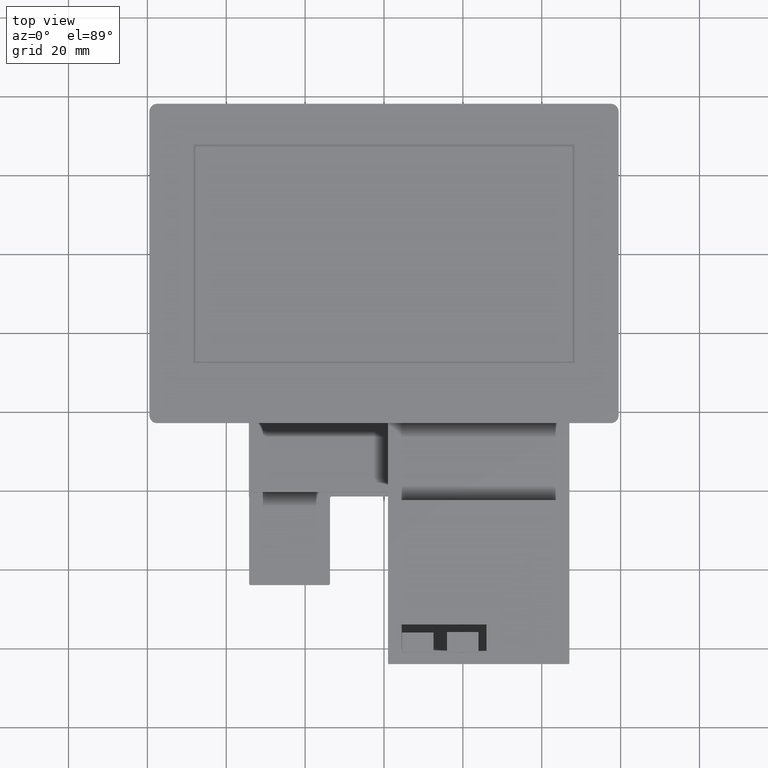
[diagram: clean part render]
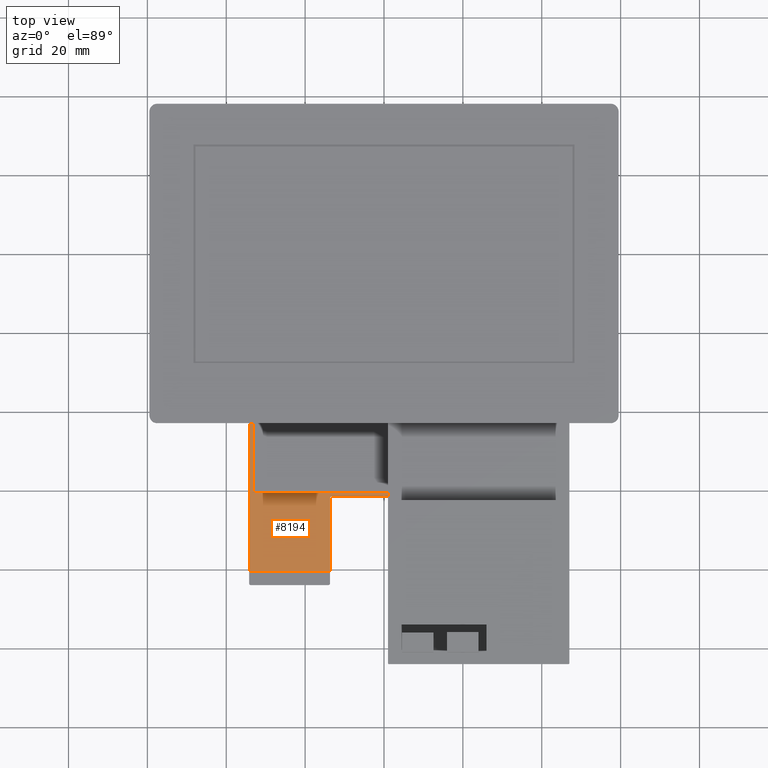
[diagram: same view with one face highlighted and labeled with its STEP entity id]
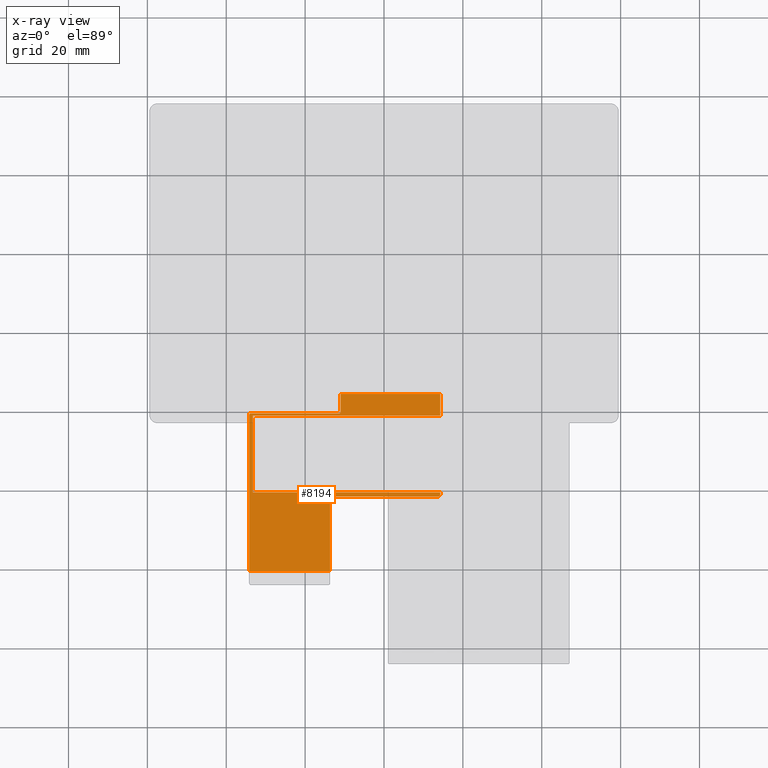
[diagram: x-ray of the same camera — body ghosted, the highlighted face saturated]
A machine part, top view. The second image highlights one B-rep face of the part: STEP entity #8194.
The next image is the same camera in x-ray: the body ghosted, the highlighted face saturated — about 0% of this face is hidden behind the body in this view.
In plain terms, the highlighted planar face has unit normal (0, 0, 1).
Its self-contained STEP definition (entity closure, byte-faithful):
#323=PLANE('',#8687);
#713=FACE_OUTER_BOUND('',#1149,.T.);
#1149=EDGE_LOOP('',(#7042,#7043,#7044,#7045,#7046,#7047,#7048,#7049,#7050,
#7051,#7052,#7053,#7054,#7055,#7056,#7057));
#1547=LINE('',#11481,#2625);
#1551=LINE('',#11489,#2629);
#1555=LINE('',#11497,#2633);
#2044=LINE('',#12482,#3122);
#2051=LINE('',#12500,#3129);
#2067=LINE('',#12542,#3145);
#2071=LINE('',#12549,#3149);
#2072=LINE('',#12551,#3150);
#2073=LINE('',#12555,#3151);
#2074=LINE('',#12558,#3152);
#2075=LINE('',#12561,#3153);
#2076=LINE('',#12562,#3154);
#2625=VECTOR('',#9357,10.5);
#2629=VECTOR('',#9361,0.67);
#2633=VECTOR('',#9367,47.5);
#3122=VECTOR('',#10184,10.);
#3129=VECTOR('',#10203,42.72);
#3145=VECTOR('',#10241,27.15);
#3149=VECTOR('',#10247,10.);
#3150=VECTOR('',#10248,9.597074687738);
#3151=VECTOR('',#10251,22.38707468774);
#3152=VECTOR('',#10254,21.65);
#3153=VECTOR('',#10257,47.5);
#3154=VECTOR('',#10258,19.5);
#3520=CIRCLE('',#8683,0.4);
#3522=CIRCLE('',#8688,0.402925312262);
#3523=CIRCLE('',#8689,0.4);
#3524=CIRCLE('',#8690,0.4);
#3733=VERTEX_POINT('',#11478);
#3734=VERTEX_POINT('',#11480);
#3737=VERTEX_POINT('',#11486);
#3738=VERTEX_POINT('',#11488);
#3741=VERTEX_POINT('',#11496);
#4072=VERTEX_POINT('',#12479);
#4073=VERTEX_POINT('',#12481);
#4078=VERTEX_POINT('',#12499);
#4089=VERTEX_POINT('',#12529);
#4093=VERTEX_POINT('',#12541);
#4095=VERTEX_POINT('',#12548);
#4096=VERTEX_POINT('',#12550);
#4097=VERTEX_POINT('',#12552);
#4098=VERTEX_POINT('',#12554);
#4099=VERTEX_POINT('',#12557);
#4100=VERTEX_POINT('',#12560);
#4586=EDGE_CURVE('',#3734,#3733,#1547,.T.);
#4590=EDGE_CURVE('',#3738,#3737,#1551,.T.);
#4594=EDGE_CURVE('',#3734,#3741,#1555,.T.);
#5086=EDGE_CURVE('',#4073,#4072,#2044,.T.);
#5095=EDGE_CURVE('',#4078,#4073,#2051,.T.);
#5110=EDGE_CURVE('',#3738,#4089,#3520,.T.);
#5116=EDGE_CURVE('',#4093,#4089,#2067,.T.);
#5120=EDGE_CURVE('',#4095,#3733,#2071,.T.);
#5121=EDGE_CURVE('',#4095,#4096,#2072,.T.);
#5122=EDGE_CURVE('',#4096,#4097,#3522,.T.);
#5123=EDGE_CURVE('',#4097,#4098,#2073,.T.);
#5124=EDGE_CURVE('',#4098,#4078,#3523,.T.);
#5125=EDGE_CURVE('',#4072,#4099,#2074,.T.);
#5126=EDGE_CURVE('',#4099,#4093,#3524,.T.);
#5127=EDGE_CURVE('',#3737,#4100,#2075,.T.);
#5128=EDGE_CURVE('',#3741,#4100,#2076,.T.);
#7042=ORIENTED_EDGE('',*,*,#5120,.F.);
#7043=ORIENTED_EDGE('',*,*,#5121,.T.);
#7044=ORIENTED_EDGE('',*,*,#5122,.T.);
#7045=ORIENTED_EDGE('',*,*,#5123,.T.);
#7046=ORIENTED_EDGE('',*,*,#5124,.T.);
#7047=ORIENTED_EDGE('',*,*,#5095,.T.);
#7048=ORIENTED_EDGE('',*,*,#5086,.T.);
#7049=ORIENTED_EDGE('',*,*,#5125,.T.);
#7050=ORIENTED_EDGE('',*,*,#5126,.T.);
#7051=ORIENTED_EDGE('',*,*,#5116,.T.);
#7052=ORIENTED_EDGE('',*,*,#5110,.F.);
#7053=ORIENTED_EDGE('',*,*,#4590,.T.);
#7054=ORIENTED_EDGE('',*,*,#5127,.T.);
#7055=ORIENTED_EDGE('',*,*,#5128,.F.);
#7056=ORIENTED_EDGE('',*,*,#4594,.F.);
#7057=ORIENTED_EDGE('',*,*,#4586,.T.);
#8194=ADVANCED_FACE('',(#713),#323,.T.);
#8683=AXIS2_PLACEMENT_3D('',#12530,#10229,#10230);
#8687=AXIS2_PLACEMENT_3D('',#12547,#10245,#10246);
#8688=AXIS2_PLACEMENT_3D('',#12553,#10249,#10250);
#8689=AXIS2_PLACEMENT_3D('',#12556,#10252,#10253);
#8690=AXIS2_PLACEMENT_3D('',#12559,#10255,#10256);
#9357=DIRECTION('',(-8.65815638633699E-16,1.,0.));
#9361=DIRECTION('',(-8.65815638633699E-16,1.,0.));
#9367=DIRECTION('',(-1.,-8.65815638633699E-16,0.));
#10184=DIRECTION('',(1.,8.65815638633699E-16,0.));
#10203=DIRECTION('',(8.65815638633699E-16,-1.,0.));
#10229=DIRECTION('center_axis',(0.,0.,-1.));
#10230=DIRECTION('ref_axis',(0.707106781186297,-0.707106781186798,0.));
#10241=DIRECTION('',(1.,8.65815638633699E-16,0.));
#10245=DIRECTION('center_axis',(0.,0.,1.));
#10246=DIRECTION('ref_axis',(1.,8.65815638633699E-16,0.));
#10247=DIRECTION('',(1.,8.65815638633699E-16,0.));
#10248=DIRECTION('',(8.65815638633699E-16,-1.,0.));
#10249=DIRECTION('center_axis',(0.,0.,-1.));
#10250=DIRECTION('ref_axis',(1.,8.65815638633699E-16,0.));
#10251=DIRECTION('',(-1.,-8.65815638633699E-16,0.));
#10252=DIRECTION('center_axis',(0.,0.,1.));
#10253=DIRECTION('ref_axis',(-8.65815638633699E-16,1.,0.));
#10254=DIRECTION('',(-8.65815638633699E-16,1.,0.));
#10255=DIRECTION('center_axis',(0.,0.,-1.));
#10256=DIRECTION('ref_axis',(-1.,-8.65815638633699E-16,0.));
#10257=DIRECTION('',(-1.,-8.65815638633699E-16,0.));
#10258=DIRECTION('',(8.65815638633699E-16,-1.,0.));
#11478=CARTESIAN_POINT('',(14.2499999999984,-35.4219999999991,-4.14));
#11480=CARTESIAN_POINT('',(14.2499999999984,-40.8519999997489,-4.14));
#11481=CARTESIAN_POINT('',(14.2499999999984,-40.8519999997489,-4.14));
#11486=CARTESIAN_POINT('',(14.2499999999984,-60.3519999997519,-4.14));
#11488=CARTESIAN_POINT('',(14.2499999999984,-61.0219999997518,-4.14));
#11489=CARTESIAN_POINT('',(14.2499999999984,-61.021999999752,-4.14));
#11496=CARTESIAN_POINT('',(-33.2400000000015,-40.8519999997489,-4.14));
#11497=CARTESIAN_POINT('',(14.2599999999985,-40.8519999997489,-4.14));
#12479=CARTESIAN_POINT('',(-13.6900000000014,-80.371999999749,-4.14));
#12481=CARTESIAN_POINT('',(-34.1900000000012,-80.371999999749,-4.14));
#12482=CARTESIAN_POINT('',(-22.5950000000012,-80.3719999997489,-4.14));
#12499=CARTESIAN_POINT('',(-34.1900000000015,-40.751999999749,-4.14));
#12500=CARTESIAN_POINT('',(-34.1900000000015,-40.751999999749,-4.14));
#12529=CARTESIAN_POINT('',(13.8499999999985,-61.4219999997519,-4.14));
#12530=CARTESIAN_POINT('Origin',(13.8499999999985,-61.0219999997518,-4.14));
#12541=CARTESIAN_POINT('',(-13.2900000000018,-61.4219999997519,-4.14));
#12542=CARTESIAN_POINT('',(-13.2900000000018,-61.4219999997519,-4.14));
#12547=CARTESIAN_POINT('Origin',(-11.0000000000016,-52.6707898479989,-4.14));
#12548=CARTESIAN_POINT('',(-11.0000000000016,-35.4219999999991,-4.14));
#12549=CARTESIAN_POINT('',(-31.6500000000016,-35.4219999999991,-4.14));
#12550=CARTESIAN_POINT('',(-11.0000000000016,-39.9490746874889,-4.14));
#12551=CARTESIAN_POINT('',(-11.0000000000016,-30.3519999997489,-4.14));
#12552=CARTESIAN_POINT('',(-11.4029253122638,-40.3519999997489,-4.14));
#12553=CARTESIAN_POINT('Origin',(-11.4029253122638,-39.9490746874889,-4.14));
#12554=CARTESIAN_POINT('',(-33.7900000000016,-40.3519999997489,-4.14));
#12555=CARTESIAN_POINT('',(-11.4029253122638,-40.3519999997489,-4.14));
#12556=CARTESIAN_POINT('Origin',(-33.7900000000016,-40.751999999749,-4.14));
#12557=CARTESIAN_POINT('',(-13.6900000000017,-61.821999999752,-4.14));
#12558=CARTESIAN_POINT('',(-13.6900000000014,-83.4719999997489,-4.14));
#12559=CARTESIAN_POINT('Origin',(-13.2900000000018,-61.821999999752,-4.14));
#12560=CARTESIAN_POINT('',(-33.2400000000015,-60.3519999997519,-4.14));
#12561=CARTESIAN_POINT('',(14.2599999999985,-60.3519999997519,-4.14));
#12562=CARTESIAN_POINT('',(-33.2400000000015,-40.8519999997489,-4.14));